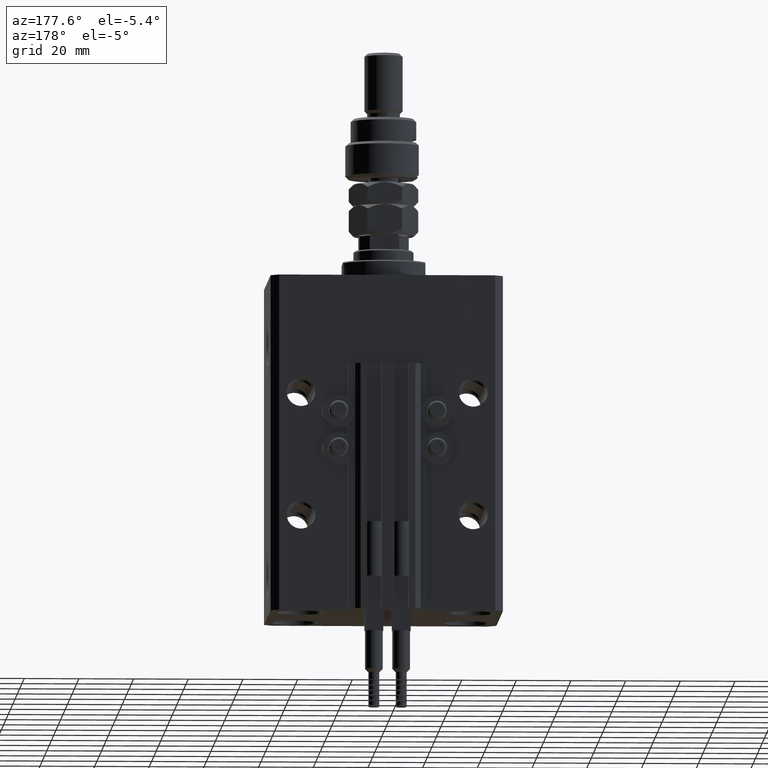
[diagram: clean part render]
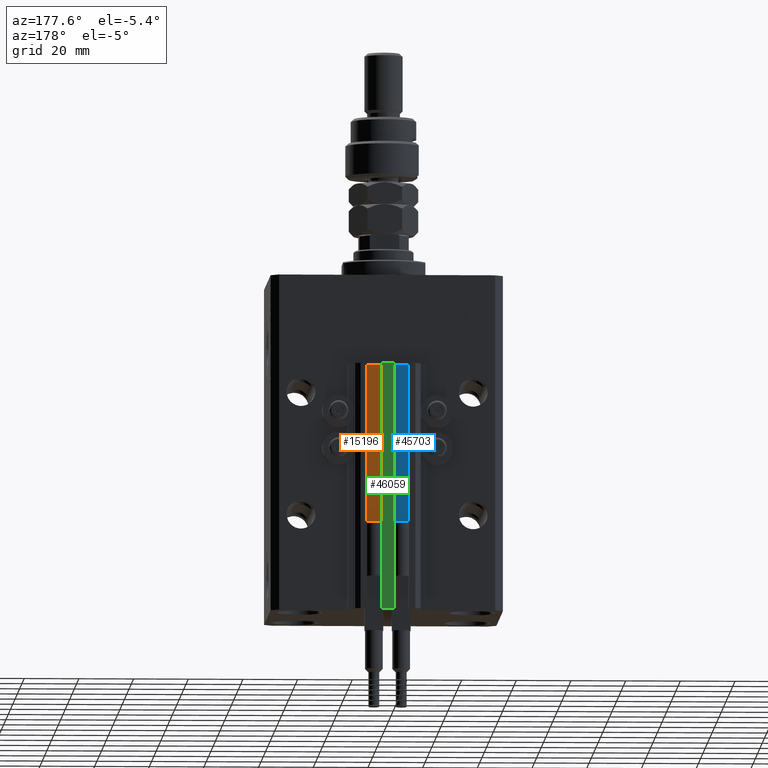
[diagram: same view with three faces highlighted in distinct colors, each labeled with its STEP entity id]
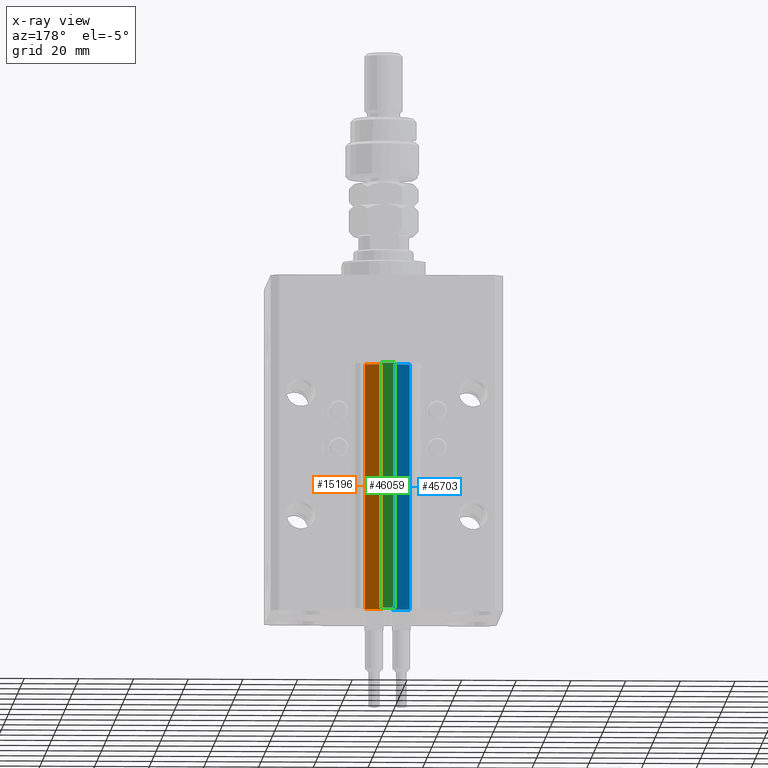
[diagram: x-ray of the same camera — body ghosted, the three highlighted faces saturated]
A machine part, auxiliary view with three faces highlighted in distinct colors.
The next image is the same camera in x-ray (body ghosted, the three faces saturated) — at least one of them is partly hidden behind the body in this view.
Their STEP definitions:

[orange] entity #15196 — the highlighted planar face has unit normal (0, 1, 0).
#221 = FACE_OUTER_BOUND ( 'NONE', #8230, .T. ) ;
#368 = LINE ( 'NONE', #47249, #48111 ) ;
#4463 = DIRECTION ( 'NONE',  ( 0.000000000000000000, 0.000000000000000000, 1.000000000000000000 ) ) ;
#4479 = LINE ( 'NONE', #47432, #28892 ) ;
#4851 = VECTOR ( 'NONE', #48751, 1000.000000000000000 ) ;
#5159 = VECTOR ( 'NONE', #4463, 1000.000000000000000 ) ;
#6871 = CARTESIAN_POINT ( 'NONE',  ( 1.800000000000000933, 33.50000000000000000, -33.00000000000000000 ) ) ;
#8230 = EDGE_LOOP ( 'NONE', ( #45304, #51338, #19324, #39729 ) ) ;
#12969 = CARTESIAN_POINT ( 'NONE',  ( 8.199999999999999289, 33.50000000000000000, -33.00000000000000000 ) ) ;
#15196 = ADVANCED_FACE ( 'NONE', ( #221 ), #31927, .T. ) ;
#19129 = VERTEX_POINT ( 'NONE', #12969 ) ;
#19324 = ORIENTED_EDGE ( 'NONE', *, *, #32690, .T. ) ;
#23196 = EDGE_CURVE ( 'NONE', #19129, #24050, #4479, .T. ) ;
#24050 = VERTEX_POINT ( 'NONE', #6871 ) ;
#24593 = CARTESIAN_POINT ( 'NONE',  ( 8.199999999999999289, 33.50000000000000000, -123.0000000000000000 ) ) ;
#27365 = DIRECTION ( 'NONE',  ( 0.000000000000000000, 0.000000000000000000, 1.000000000000000000 ) ) ;
#27624 = VERTEX_POINT ( 'NONE', #47741 ) ;
#27792 = CARTESIAN_POINT ( 'NONE',  ( 8.199999999999999289, 33.50000000000000000, -123.0000000000000000 ) ) ;
#28256 = DIRECTION ( 'NONE',  ( 0.000000000000000000, 1.000000000000000000, -0.000000000000000000 ) ) ;
#28881 = CARTESIAN_POINT ( 'NONE',  ( 1.800000000000000933, 33.50000000000000000, -123.0000000000000000 ) ) ;
#28892 = VECTOR ( 'NONE', #35402, 1000.000000000000000 ) ;
#29653 = LINE ( 'NONE', #41152, #4851 ) ;
#31927 = PLANE ( 'NONE',  #45399 ) ;
#32690 = EDGE_CURVE ( 'NONE', #27624, #38519, #29653, .T. ) ;
#35402 = DIRECTION ( 'NONE',  ( -1.000000000000000000, 0.000000000000000000, 0.000000000000000000 ) ) ;
#38519 = VERTEX_POINT ( 'NONE', #28881 ) ;
#39729 = ORIENTED_EDGE ( 'NONE', *, *, #51437, .T. ) ;
#40365 = EDGE_CURVE ( 'NONE', #27624, #19129, #48457, .T. ) ;
#41152 = CARTESIAN_POINT ( 'NONE',  ( 8.199999999999999289, 33.50000000000000000, -123.0000000000000000 ) ) ;
#45304 = ORIENTED_EDGE ( 'NONE', *, *, #23196, .F. ) ;
#45399 = AXIS2_PLACEMENT_3D ( 'NONE', #24593, #28256, #51813 ) ;
#47249 = CARTESIAN_POINT ( 'NONE',  ( 1.800000000000000933, 33.50000000000000000, -123.0000000000000000 ) ) ;
#47432 = CARTESIAN_POINT ( 'NONE',  ( 8.199999999999999289, 33.50000000000000000, -33.00000000000000000 ) ) ;
#47741 = CARTESIAN_POINT ( 'NONE',  ( 8.199999999999999289, 33.50000000000000000, -123.0000000000000000 ) ) ;
#48111 = VECTOR ( 'NONE', #27365, 1000.000000000000000 ) ;
#48457 = LINE ( 'NONE', #27792, #5159 ) ;
#48751 = DIRECTION ( 'NONE',  ( -1.000000000000000000, 0.000000000000000000, 0.000000000000000000 ) ) ;
#51338 = ORIENTED_EDGE ( 'NONE', *, *, #40365, .F. ) ;
#51437 = EDGE_CURVE ( 'NONE', #38519, #24050, #368, .T. ) ;
#51813 = DIRECTION ( 'NONE',  ( 0.000000000000000000, 0.000000000000000000, 1.000000000000000000 ) ) ;

[blue] entity #45703 — the highlighted planar face has unit normal (0, 1, 0).
#279 = EDGE_CURVE ( 'NONE', #40855, #50249, #48983, .T. ) ;
#508 = PLANE ( 'NONE',  #2866 ) ;
#2604 = DIRECTION ( 'NONE',  ( -1.000000000000000000, 0.000000000000000000, 0.000000000000000000 ) ) ;
#2866 = AXIS2_PLACEMENT_3D ( 'NONE', #4426, #35880, #15447 ) ;
#4426 = CARTESIAN_POINT ( 'NONE',  ( -1.800000000000000933, 33.50000000000000000, -123.0000000000000000 ) ) ;
#6985 = CARTESIAN_POINT ( 'NONE',  ( -1.800000000000000933, 33.50000000000000000, -33.00000000000000000 ) ) ;
#7511 = ORIENTED_EDGE ( 'NONE', *, *, #7648, .T. ) ;
#7648 = EDGE_CURVE ( 'NONE', #35035, #50249, #28692, .T. ) ;
#9224 = ORIENTED_EDGE ( 'NONE', *, *, #279, .F. ) ;
#9286 = DIRECTION ( 'NONE',  ( 0.000000000000000000, 0.000000000000000000, 1.000000000000000000 ) ) ;
#14865 = VERTEX_POINT ( 'NONE', #20201 ) ;
#15447 = DIRECTION ( 'NONE',  ( 0.000000000000000000, 0.000000000000000000, 1.000000000000000000 ) ) ;
#16475 = EDGE_CURVE ( 'NONE', #14865, #40855, #39983, .T. ) ;
#20201 = CARTESIAN_POINT ( 'NONE',  ( -1.800000000000000933, 33.50000000000000000, -123.0000000000000000 ) ) ;
#20975 = CARTESIAN_POINT ( 'NONE',  ( -1.800000000000000933, 33.50000000000000000, -33.00000000000000000 ) ) ;
#21078 = ORIENTED_EDGE ( 'NONE', *, *, #26932, .T. ) ;
#26932 = EDGE_CURVE ( 'NONE', #14865, #35035, #30882, .T. ) ;
#28459 = DIRECTION ( 'NONE',  ( 0.000000000000000000, 0.000000000000000000, 1.000000000000000000 ) ) ;
#28692 = LINE ( 'NONE', #49089, #31897 ) ;
#30882 = LINE ( 'NONE', #43426, #41590 ) ;
#31279 = VECTOR ( 'NONE', #28459, 1000.000000000000000 ) ;
#31897 = VECTOR ( 'NONE', #9286, 1000.000000000000000 ) ;
#31924 = CARTESIAN_POINT ( 'NONE',  ( -8.199999999999997513, 33.50000000000000000, -33.00000000000000000 ) ) ;
#33551 = DIRECTION ( 'NONE',  ( -1.000000000000000000, 0.000000000000000000, 0.000000000000000000 ) ) ;
#35035 = VERTEX_POINT ( 'NONE', #38528 ) ;
#35880 = DIRECTION ( 'NONE',  ( 0.000000000000000000, 1.000000000000000000, -0.000000000000000000 ) ) ;
#38528 = CARTESIAN_POINT ( 'NONE',  ( -8.199999999999997513, 33.50000000000000000, -123.0000000000000000 ) ) ;
#39983 = LINE ( 'NONE', #47825, #31279 ) ;
#40855 = VERTEX_POINT ( 'NONE', #6985 ) ;
#41590 = VECTOR ( 'NONE', #2604, 1000.000000000000000 ) ;
#43240 = ORIENTED_EDGE ( 'NONE', *, *, #16475, .F. ) ;
#43426 = CARTESIAN_POINT ( 'NONE',  ( -1.800000000000000933, 33.50000000000000000, -123.0000000000000000 ) ) ;
#45703 = ADVANCED_FACE ( 'NONE', ( #46368 ), #508, .T. ) ;
#46368 = FACE_OUTER_BOUND ( 'NONE', #47516, .T. ) ;
#47516 = EDGE_LOOP ( 'NONE', ( #9224, #43240, #21078, #7511 ) ) ;
#47825 = CARTESIAN_POINT ( 'NONE',  ( -1.800000000000000933, 33.50000000000000000, -123.0000000000000000 ) ) ;
#48983 = LINE ( 'NONE', #20975, #50107 ) ;
#49089 = CARTESIAN_POINT ( 'NONE',  ( -8.199999999999997513, 33.50000000000000000, -123.0000000000000000 ) ) ;
#50107 = VECTOR ( 'NONE', #33551, 1000.000000000000000 ) ;
#50249 = VERTEX_POINT ( 'NONE', #31924 ) ;

[green] entity #46059 — the highlighted planar face has unit normal (0, -1, 0).
#1085 = VERTEX_POINT ( 'NONE', #32273 ) ;
#1623 = DIRECTION ( 'NONE',  ( 0.000000000000000000, 0.000000000000000000, 1.000000000000000000 ) ) ;
#1879 = EDGE_CURVE ( 'NONE', #4047, #34821, #4867, .T. ) ;
#2013 = EDGE_CURVE ( 'NONE', #1085, #4047, #30015, .T. ) ;
#2361 = CARTESIAN_POINT ( 'NONE',  ( 2.349999999999999645, 39.50000000000000711, -123.0000000000000000 ) ) ;
#4047 = VERTEX_POINT ( 'NONE', #4888 ) ;
#4758 = EDGE_CURVE ( 'NONE', #50124, #34821, #36727, .T. ) ;
#4867 = LINE ( 'NONE', #9053, #44296 ) ;
#4888 = CARTESIAN_POINT ( 'NONE',  ( -2.350000000000003642, 39.50000000000000711, -33.00000000000000000 ) ) ;
#6371 = CARTESIAN_POINT ( 'NONE',  ( 2.349999999999999645, 39.50000000000000711, -33.00000000000000000 ) ) ;
#6404 = DIRECTION ( 'NONE',  ( 1.000000000000000000, 0.000000000000000000, 0.000000000000000000 ) ) ;
#9053 = CARTESIAN_POINT ( 'NONE',  ( -2.350000000000003642, 39.50000000000000711, -33.00000000000000000 ) ) ;
#9651 = ORIENTED_EDGE ( 'NONE', *, *, #10094, .F. ) ;
#10094 = EDGE_CURVE ( 'NONE', #1085, #50124, #17939, .T. ) ;
#12914 = AXIS2_PLACEMENT_3D ( 'NONE', #47685, #43766, #19938 ) ;
#14268 = CARTESIAN_POINT ( 'NONE',  ( -2.350000000000003642, 39.50000000000000711, -123.0000000000000000 ) ) ;
#16914 = DIRECTION ( 'NONE',  ( 1.000000000000000000, 0.000000000000000000, 0.000000000000000000 ) ) ;
#17939 = LINE ( 'NONE', #14268, #35302 ) ;
#19938 = DIRECTION ( 'NONE',  ( 0.000000000000000000, -0.000000000000000000, -1.000000000000000000 ) ) ;
#19977 = ORIENTED_EDGE ( 'NONE', *, *, #4758, .F. ) ;
#27794 = PLANE ( 'NONE',  #12914 ) ;
#30015 = LINE ( 'NONE', #42820, #46843 ) ;
#31041 = DIRECTION ( 'NONE',  ( 0.000000000000000000, 0.000000000000000000, 1.000000000000000000 ) ) ;
#31732 = FACE_OUTER_BOUND ( 'NONE', #47507, .T. ) ;
#32273 = CARTESIAN_POINT ( 'NONE',  ( -2.350000000000003642, 39.50000000000000711, -123.0000000000000000 ) ) ;
#34821 = VERTEX_POINT ( 'NONE', #6371 ) ;
#35302 = VECTOR ( 'NONE', #6404, 1000.000000000000000 ) ;
#36727 = LINE ( 'NONE', #37517, #44408 ) ;
#37517 = CARTESIAN_POINT ( 'NONE',  ( 2.349999999999999645, 39.50000000000000711, -123.0000000000000000 ) ) ;
#40391 = ORIENTED_EDGE ( 'NONE', *, *, #2013, .T. ) ;
#42820 = CARTESIAN_POINT ( 'NONE',  ( -2.350000000000003642, 39.50000000000000711, -123.0000000000000000 ) ) ;
#43766 = DIRECTION ( 'NONE',  ( 0.000000000000000000, -1.000000000000000000, 0.000000000000000000 ) ) ;
#44296 = VECTOR ( 'NONE', #16914, 1000.000000000000000 ) ;
#44408 = VECTOR ( 'NONE', #1623, 1000.000000000000000 ) ;
#46059 = ADVANCED_FACE ( 'NONE', ( #31732 ), #27794, .F. ) ;
#46843 = VECTOR ( 'NONE', #31041, 1000.000000000000000 ) ;
#47507 = EDGE_LOOP ( 'NONE', ( #47830, #19977, #9651, #40391 ) ) ;
#47685 = CARTESIAN_POINT ( 'NONE',  ( -2.350000000000003642, 39.50000000000000711, -123.0000000000000000 ) ) ;
#47830 = ORIENTED_EDGE ( 'NONE', *, *, #1879, .T. ) ;
#50124 = VERTEX_POINT ( 'NONE', #2361 ) ;